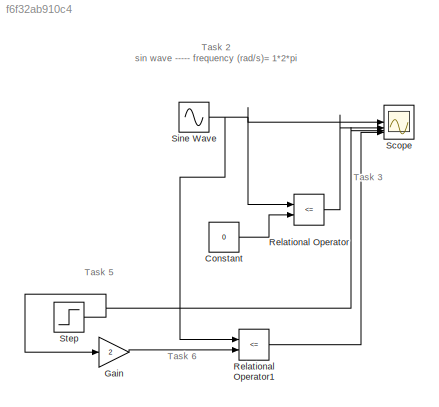
MODEL slx_f6f32ab910c4
KIND model
CONFIG AbsTol = auto
CONFIG EnableMultiTasking = off
CONFIG FixedStep = 1e-3
CONFIG MaxStep = auto
CONFIG MinStep = auto
CONFIG RelTol = 1e-3
CONFIG SampleTimeConstraint = Unconstrained
CONFIG SolverName = FixedStepAuto
CONFIG StartTime = 0.0
CONFIG StopTime = 10.0
BLOCK [Constant] Constant
  Value = 0
BLOCK [Gain] Gain
  Gain = 2
BLOCK [RelationalOperator] Relational Operator
  InputSameDT = off
  Operator = <=
  OutDataTypeStr = boolean
  RndMeth = Simplest
BLOCK [RelationalOperator] Relational Operator1
  InputSameDT = off
  Operator = <=
  OutDataTypeStr = boolean
  RndMeth = Simplest
BLOCK [Scope] Scope
  Floating = off
  NumInputPorts = 4
  ScopeSpecificationString = Simulink.scopes.TimeScopeBlockCfg('CurrentConfiguration', extmgr.ConfigurationSet(extmgr.Configuration('Core','General UI',true),extmgr.Configuration('Core','Source UI',true),extmgr.Configuration('Sources','WiredSimulink',true),extmgr.Configuration('Visuals','Time Domain',true,'SerializedDisplays',{struct('MinYLimReal','-1.25','MaxYLimReal','1.25','YLabelReal','','MinYLimMag','0.00000','MaxYLimMag...<+3377ch>
BLOCK [Sin] Sine Wave
  Frequency = 1*2*pi
  SampleTime = 0
BLOCK [Step] Step
  Before = 2
  SampleTime = 0
ANNOTATION (root): Task 2 sin wave ----- frequency (rad/s)= 1*2*pi
ANNOTATION (root): Task 3
ANNOTATION (root): Task 5
ANNOTATION (root): Task 6
LINE Constant:1 -> Relational Operator:2
LINE Gain:1 -> Relational Operator1:2
LINE Relational Operator1:1 -> Scope:4
LINE Relational Operator:1 -> Scope:2
NET Sine Wave:1 -> Relational Operator1:1, Relational Operator:1, Scope:1
NET Step:1 -> Gain:1, Scope:3
note: NET lines group one-source signal fan-out (src -> all destinations, sorted); 1:1 wires keep LINE
